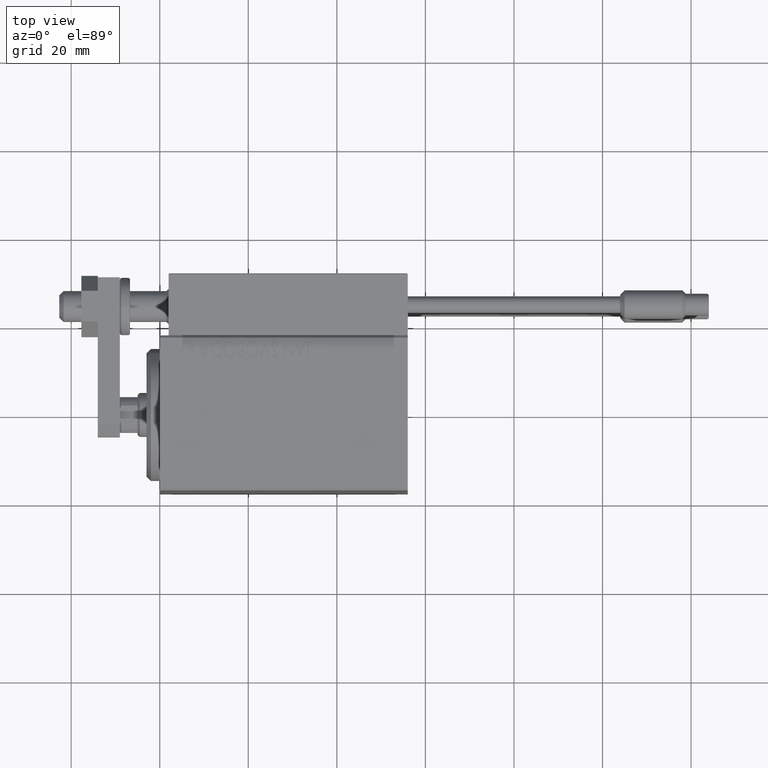
[diagram: clean part render]
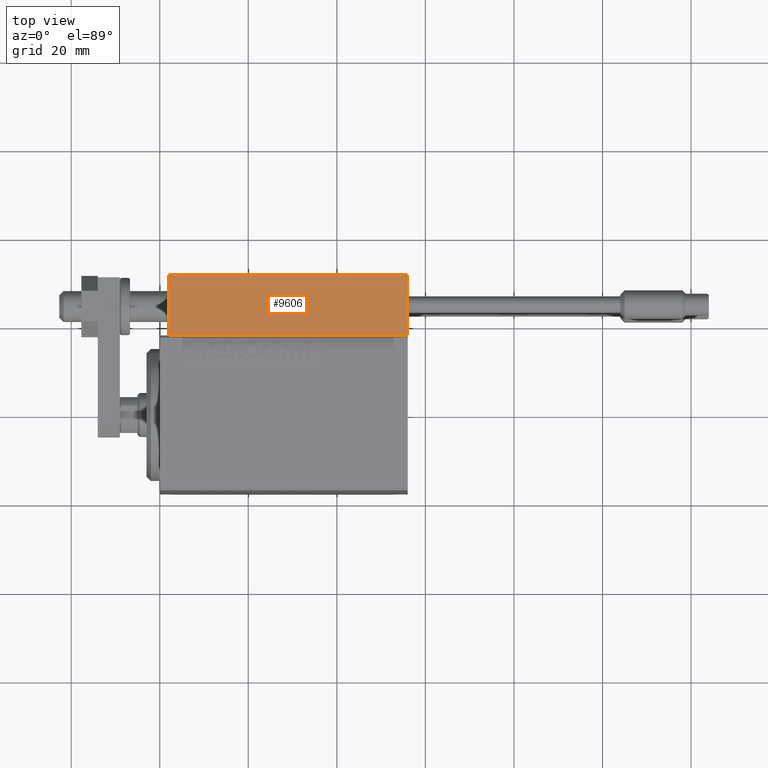
[diagram: same view with one face highlighted and labeled with its STEP entity id]
A machine part, top view. The second image highlights one B-rep face of the part: STEP entity #9606.
In plain terms, the highlighted planar face has unit normal (-0, -0, -1).
Its self-contained STEP definition (entity closure, byte-faithful):
#530 = VECTOR ( 'NONE', #28556, 1000.000000000000000 ) ;
#1264 = AXIS2_PLACEMENT_3D ( 'NONE', #5487, #24876, #32999 ) ;
#3104 = CARTESIAN_POINT ( 'NONE',  ( 27.00000000000006395, 20.00000000000001776, 13.70000000000000107 ) ) ;
#3444 = EDGE_CURVE ( 'NONE', #49576, #28591, #31852, .T. ) ;
#4784 = CARTESIAN_POINT ( 'NONE',  ( 27.00000000000006395, 20.00000000000001776, 14.00000000000000000 ) ) ;
#5487 = CARTESIAN_POINT ( 'NONE',  ( 27.00000000000006395, 20.00000000000001776, 14.00000000000000000 ) ) ;
#8481 = ORIENTED_EDGE ( 'NONE', *, *, #24140, .T. ) ;
#9606 = ADVANCED_FACE ( 'NONE', ( #45954 ), #45011, .F. ) ;
#12625 = EDGE_LOOP ( 'NONE', ( #26193, #8481, #19920, #31501 ) ) ;
#12698 = VECTOR ( 'NONE', #35626, 1000.000000000000000 ) ;
#13741 = CARTESIAN_POINT ( 'NONE',  ( 27.00000000000006395, 20.00000000000001776, 0.000000000000000000 ) ) ;
#14895 = VERTEX_POINT ( 'NONE', #13741 ) ;
#15472 = DIRECTION ( 'NONE',  ( 1.000000000000000000, -6.424901762877063495E-17, -0.000000000000000000 ) ) ;
#16814 = CARTESIAN_POINT ( 'NONE',  ( -26.99999999999993605, 20.00000000000002132, 14.00000000000000000 ) ) ;
#19920 = ORIENTED_EDGE ( 'NONE', *, *, #48332, .T. ) ;
#20092 = LINE ( 'NONE', #35132, #12698 ) ;
#24140 = EDGE_CURVE ( 'NONE', #49576, #25891, #31267, .T. ) ;
#24148 = VECTOR ( 'NONE', #38727, 1000.000000000000000 ) ;
#24876 = DIRECTION ( 'NONE',  ( -6.424901762877063495E-17, -1.000000000000000000, 0.000000000000000000 ) ) ;
#25891 = VERTEX_POINT ( 'NONE', #3104 ) ;
#26193 = ORIENTED_EDGE ( 'NONE', *, *, #3444, .F. ) ;
#27511 = LINE ( 'NONE', #4784, #24148 ) ;
#28556 = DIRECTION ( 'NONE',  ( -0.000000000000000000, -0.000000000000000000, -1.000000000000000000 ) ) ;
#28591 = VERTEX_POINT ( 'NONE', #37369 ) ;
#31267 = LINE ( 'NONE', #50162, #48870 ) ;
#31501 = ORIENTED_EDGE ( 'NONE', *, *, #47405, .T. ) ;
#31852 = LINE ( 'NONE', #16814, #530 ) ;
#31945 = CARTESIAN_POINT ( 'NONE',  ( -26.99999999999993605, 20.00000000000002132, 13.70000000000000107 ) ) ;
#32999 = DIRECTION ( 'NONE',  ( 1.000000000000000000, -6.424901762877063495E-17, 0.000000000000000000 ) ) ;
#35132 = CARTESIAN_POINT ( 'NONE',  ( 27.00000000000006395, 20.00000000000001776, 0.000000000000000000 ) ) ;
#35626 = DIRECTION ( 'NONE',  ( -1.000000000000000000, 6.424901762877062263E-17, 0.000000000000000000 ) ) ;
#37369 = CARTESIAN_POINT ( 'NONE',  ( -26.99999999999993605, 20.00000000000002132, 0.000000000000000000 ) ) ;
#38727 = DIRECTION ( 'NONE',  ( -0.000000000000000000, -0.000000000000000000, -1.000000000000000000 ) ) ;
#45011 = PLANE ( 'NONE',  #1264 ) ;
#45954 = FACE_OUTER_BOUND ( 'NONE', #12625, .T. ) ;
#47405 = EDGE_CURVE ( 'NONE', #14895, #28591, #20092, .T. ) ;
#48332 = EDGE_CURVE ( 'NONE', #25891, #14895, #27511, .T. ) ;
#48870 = VECTOR ( 'NONE', #15472, 1000.000000000000000 ) ;
#49576 = VERTEX_POINT ( 'NONE', #31945 ) ;
#50162 = CARTESIAN_POINT ( 'NONE',  ( 27.00000000000006395, 20.00000000000001776, 13.70000000000000107 ) ) ;